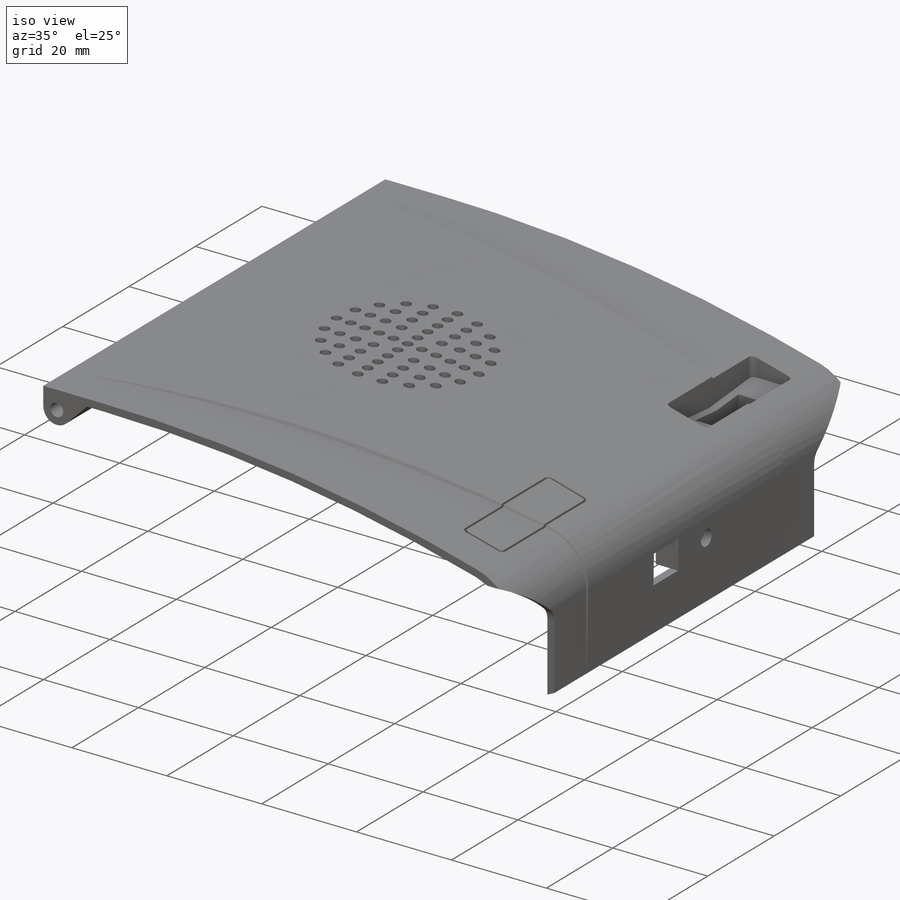
[diagram: iso view]
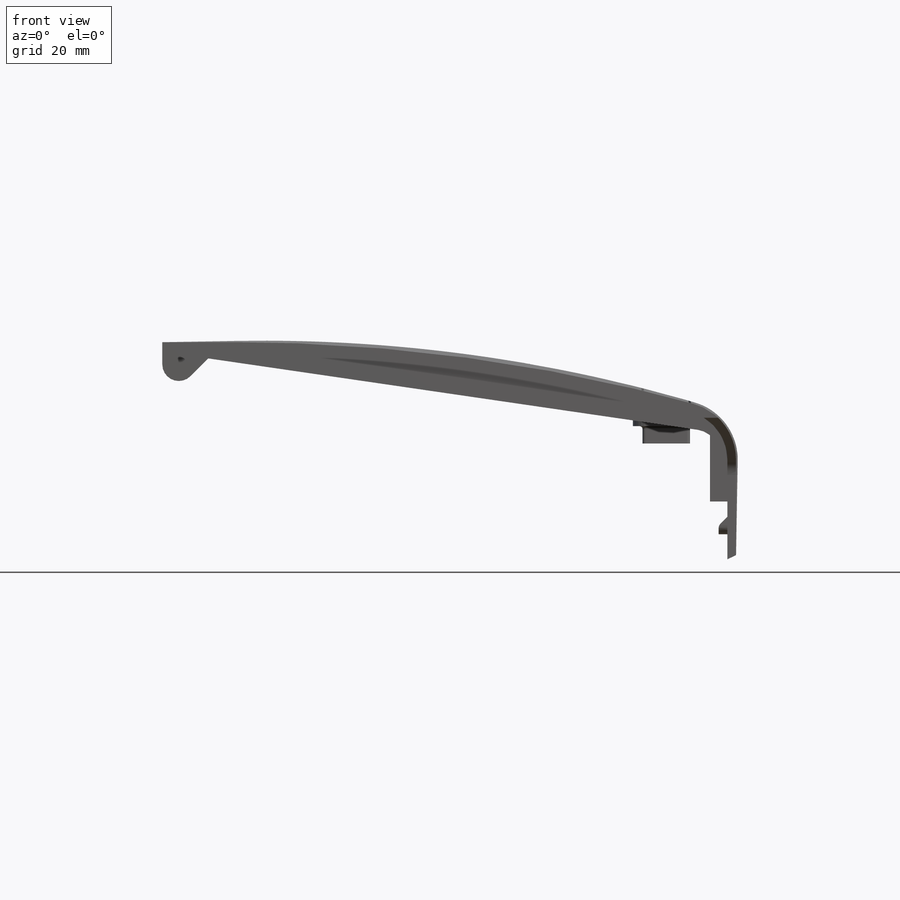
[diagram: front view]
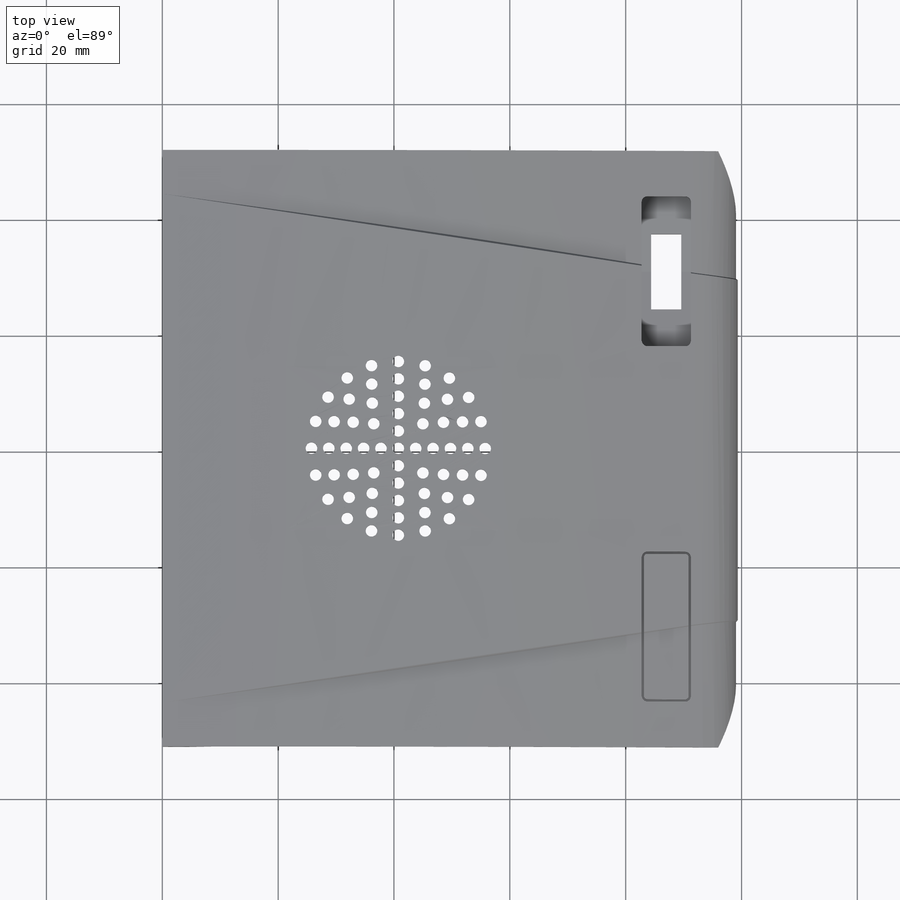
[diagram: top view]
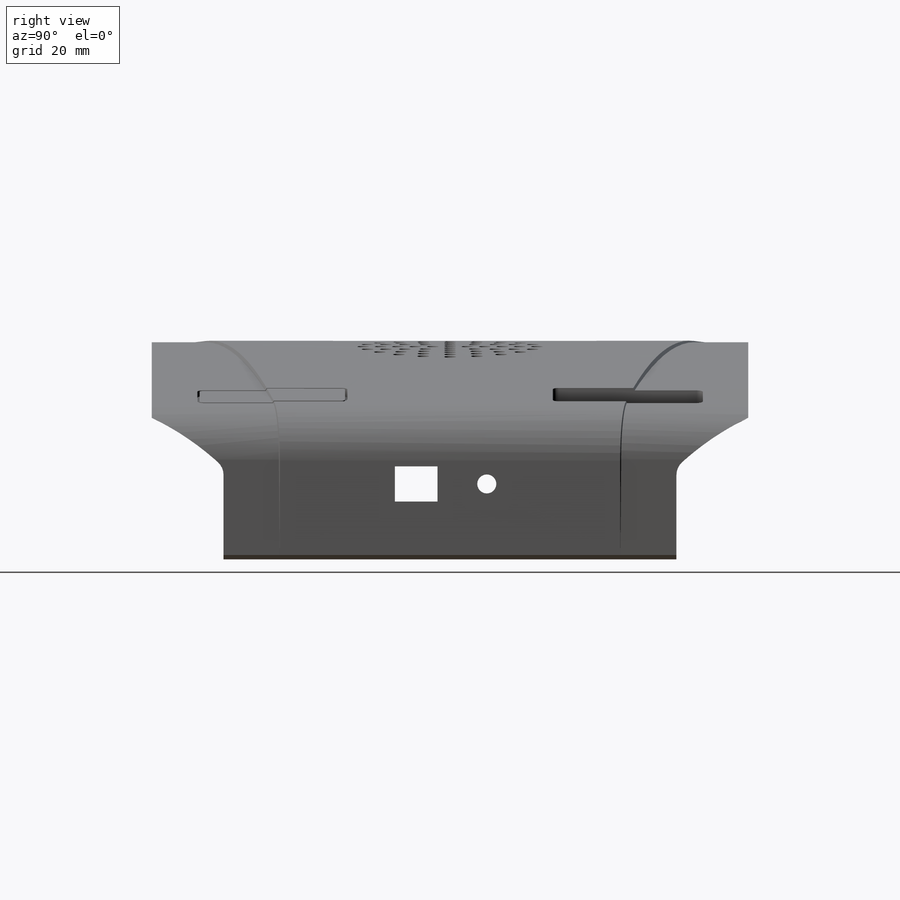
[diagram: right view]
SOLIDWORKS PART (.sldprt)
format: sldprt  version: not decoded by parser v0  size: 2,011,136 bytes
history: native  units: mm
features: sketch x36, cut_extrude x18, extrude x14, plane x9, fillet x8, mirror x4, chamfer x3, material x1, pattern_linear x1 (+16 scaffold rows collapsed)
feature tree (110):
  scaffold x16  (default folders/planes/origin — collapsed)
  material  "1080 Polyurethane"
  sketch  "Sketch1"  dims[c1.D5=210.8327mm c1.D6=2.921mm c1.D9=42.0mm c1.D2=1.778mm c1.D3=~13.294936mm c2.D3=~176.837498deg c3.D3=1.778mm c3.D4=1.778mm c3.D1=12.7mm c3.D7=24.0mm c3.D8=55.626mm c3.D9=~3.260846mm c3.D5=~99.05571mm c3.D6=~36.752023mm c4.D3=1.778mm c4.D2=~11.890434mm c5.D2=120.0deg c5.D3=~8.065742mm c6.D3=120.0deg c6.D4=24.5mm c6.D5=10.41mm c6.D6=50.0mm c6.D10=12.62mm c6.D11=~99.05571mm c6.D12=~18.873977mm c6.D13=~12.752023mm c6.D1=0.0mm c7.D5=0.0mm c7.D1=0.0mm]
  extrude  "Boss-Extrude1"  Depth=123.19mm
  fillet  "Fillet2"  Radius=3mm ModelUUID=0mm UUID=0mm
  fillet  "Fillet1"  Radius=10mm
  sketch  "Sketch3"  dims[D1=30.0mm D2=12.0mm]
  plane  "Plane1"  Offset=20mm
  sketch  "Sketch5"  dims[D1=30.0mm D2=15.0mm D3=10.0mm]
  cut_extrude  "Cut-Extrude1"  Depth=20mm
  sketch  "Sketch6"  dims[D6=48.0mm D1=29.0mm D2=16.0mm D3=22.5mm D4=4.0mm D5=5.0mm D7=~6.348338mm]
  cut_extrude  "Cut-Extrude2"  Depth=14mm
  mirror  "Mirror1"
  sketch  "Sketch7"  dims[c1.D2=266.0mm c1.D4=10.25mm c1.D1=~1.954899mm c2.D1=1.0deg c2.D2=~13.212338mm c3.D2=1.0deg c3.D1=12.7mm c4.D1=1.0deg c4.D3=~6.348338mm c5.D3=1.0deg]
  extrude  "Boss-Extrude2"  Depth=102mm
  plane  "Plane2"  Offset=60mm
  sketch  "Sketch8"  dims[c1.D1=1.0mm c1.D2=90.0mm c1.D3=60.0mm c1.D4=15.0mm c2.D4=~81.497888deg c2.D2=~101.457013mm c3.D2=81.5deg]
  cut_extrude  "Cut-Extrude4"  [1 undecoded]
  plane  "Plane3"  Offset=102mm
  chamfer  "Chamfer1"  Distance=1mm Angle=60deg
  sketch  "Sketch10"  dims[D1=1.0mm D2=2.0mm D3=2.0mm D4=2.0mm D5=2.0mm D6=~54.064336mm]
  sketch  "Sketch12"  dims[D1=6.25mm D2=2.0mm]
  fillet  "Fillet4"  Radius=3mm
  cut_extrude  "Cut-Extrude5"  Depth=1.34mm
  sketch  "Sketch14"  dims[D1=7.0mm]
  extrude  "Boss-Extrude3"  Depth=2mm
  chamfer  "Chamfer2"  Distance=2mm Angle=70deg
  mirror  "Mirror2"
  sketch  "Sketch16"
  cut_extrude  "Cut-Extrude7"  [1 undecoded]
  sketch  "Sketch17"  dims[D1=0.0mm D2=0.0mm]
  cut_extrude  "Cut-Extrude8"  [1 undecoded]
  sketch  "Sketch18"  dims[D1=1.5mm]
  cut_extrude  "Cut-Extrude12"  [1 undecoded]
  sketch  "Sketch19"  dims[D1=1.5mm]
  cut_extrude  "Cut-Extrude13"  Depth=150mm
  sketch  "Sketch27"  dims[c1.D1=~2.70764mm c1.D2=~2.70764mm c1.D3=~2.70764mm c2.D2=1.5mm c2.D3=1.0mm c2.D4=~6.432839mm c3.D4=45.0deg c3.D5=~3.85382mm c3.D3=~2.85382mm c3.D2=3.85mm c4.D3=2.85mm]
  extrude  "Boss-Extrude10"  Depth=12.7mm
  sketch  "Sketch36"  dims[D1=16.0mm]
  plane  "Plane8"
  sketch  "Sketch28"  dims[D1=1.5mm D2=100.0mm]
  extrude  "Boss-Extrude7"  [1 undecoded]
  pattern_linear  "RibPattern"  Count1=3 Count2=3 Spacing1=20mm Spacing2=20mm
  sketch  "Sketch20"  dims[c1.D1=~1.145798mm c1.D2=8.0mm c1.D3=8.0mm c1.D4=8.5mm c2.D2=25.9mm c2.D3=82.75mm]
  cut_extrude  "ButtonCutout"  [1 undecoded]
  fillet  "Fillet5"  Radius=1mm
  plane  "Plane4"  Offset=12mm
  sketch  "Sketch21"  dims[D1=1.5mm]
  extrude  "Boss-Extrude4"  [1 undecoded]
  plane  "Plane5"  Offset=3mm
  plane  "Plane6"
  plane  "Plane7"  Offset=1mm
  sketch  "Sketch23"  dims[D3=1.0mm D1=8.5mm D2=25.9mm D4=0.4mm]
  cut_extrude  "Cut-Extrude16"  [1 undecoded]
  sketch  "Sketch24"  dims[D1=6.0mm]
  cut_extrude  "SCOUTLabel"  [1 undecoded]
  sketch  "Sketch30"  dims[D1=0.0mm]
  mirror  "Mirror4"
  extrude  "Boss-Extrude11"  [1 undecoded]
  sketch  "Sketch31"  dims[D1=1.0mm]
  cut_extrude  "Cut-Extrude18"  [1 undecoded]
  sketch  "Sketch32"  dims[D1=4.0mm]
  cut_extrude  "Cut-Extrude19"  [1 undecoded]
  plane  "Plane9"  Offset=2mm
  sketch  "Sketch33"  dims[D1=1.5mm D2=20.0mm D3=20.0mm D4=20.0mm D5=20.0mm]
  extrude  "Boss-Extrude12"  [1 undecoded]
  sketch  "Sketch37"
  cut_extrude  "Cut-Extrude21"  [1 undecoded]
  sketch  "Sketch38"  dims[c1.D1=3.302mm c1.D2=6.35mm c1.D3=6.096mm c1.D4=7.366mm c1.D5=12.7mm c1.D6=4.191mm c2.D1=1.0mm]
  cut_extrude  "BOM-Cutout"  [1 undecoded]
  sketch  "Sketch39"  dims[D1=0.0mm]
  cut_extrude  "Cut-Extrude23"  Depth=0.1mm
  mirror  "Mirror5"
  sketch  "Sketch40"  dims[c1.D1=5.2mm c1.D2=13.0mm c2.D1=1.0mm]
  extrude  "Boss-Extrude13"  Depth=1mm
  fillet  "Fillet6"  Radius=0.5mm
  sketch  "Sketch41"  dims[D1=1.5mm]
  extrude  "Boss-Extrude14"  Depth=3mm
  fillet  "Fillet7"  Radius=0.5mm
  sketch  "Sketch42"  dims[D1=1.5mm D2=1.5mm]
  extrude  "Boss-Extrude15"  Depth=3mm
  sketch  "Sketch43"  dims[D1=0.0mm D2=0.0mm]
  extrude  "Boss-Extrude16"  [1 undecoded]
  sketch  "Sketch44"  dims[D1=22.477mm D2=3.0mm D3=15.3mm]
  extrude  "Boss-Extrude17"  Depth=1.5mm
  fillet  "Fillet8"  Radius=1.5mm
  chamfer  "Chamfer3"  Distance=1.5mm Angle=45deg
  fillet  "Fillet9"  Radius=1mm
  sketch  "Sketch45"  dims[c1.D1=~13.129926mm c2.D1=5.0deg]
  extrude  "Boss-Extrude19"  [1 undecoded]
  sketch  "Sketch46"
  cut_extrude  "Cut-Extrude24"  [1 undecoded]
  sketch  "Sketch47"  dims[D1=36.0mm]
  cut_extrude  "Cut-Extrude25"  [1 undecoded]
  sketch  "Sketch49"  dims[D1=34.0mm D10=2.0mm D4=3.0mm D5=4.8mm D3=1.0mm Thickness=80.01mm]
decode coverage: 58 of 84 modeling features carry decoded parameters
note: ~ marks probable driven/reference dimensions
note: 19 parameter values undecoded
summary: no parameter record found for 19 features
note: suppression state not decoded; provenance and decode notes live in map.json
